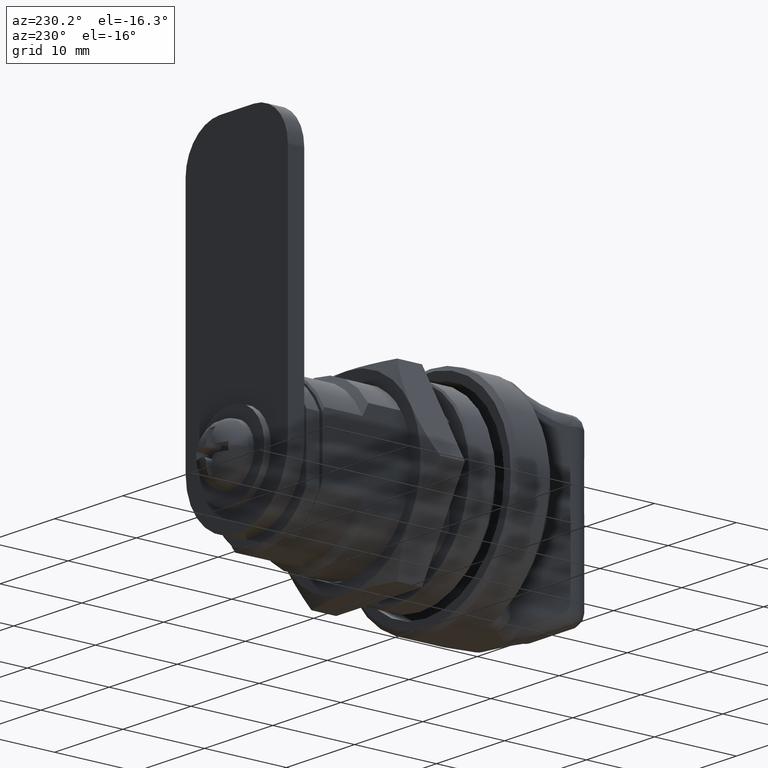
[diagram: clean part render]
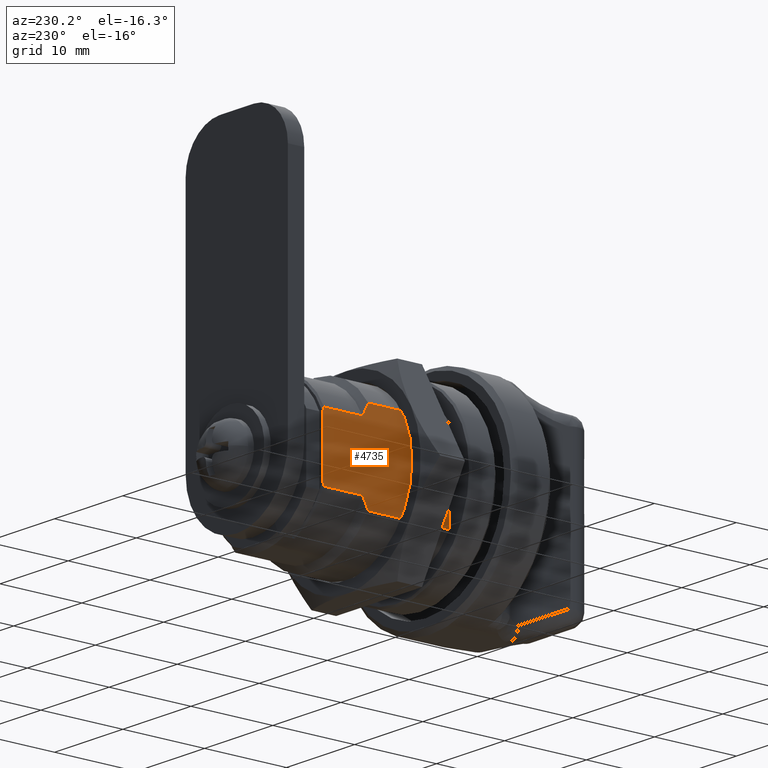
[diagram: same view with one face highlighted and labeled with its STEP entity id]
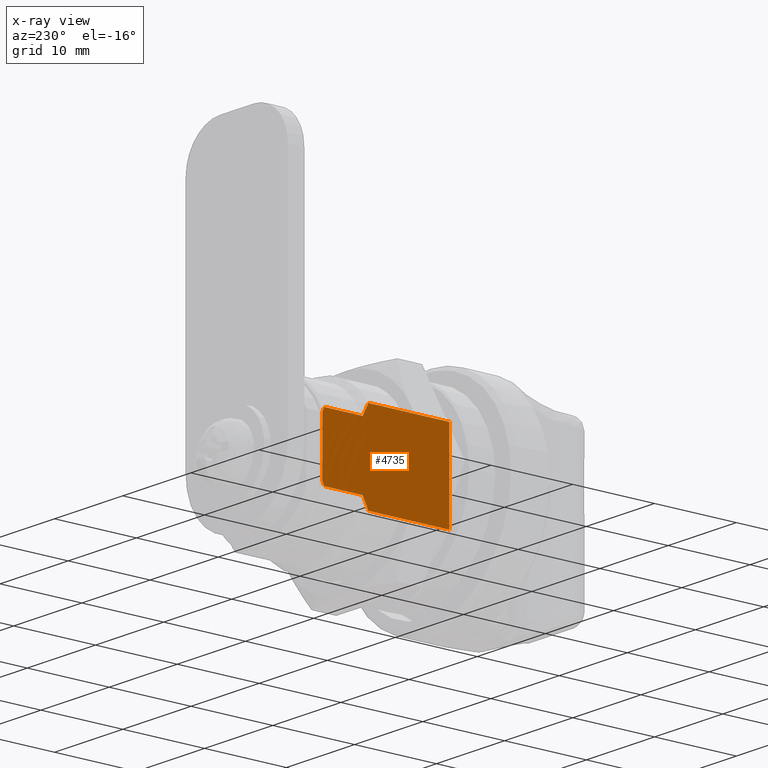
[diagram: x-ray of the same camera — body ghosted, the highlighted face saturated]
A machine part, auxiliary view. The second image highlights one B-rep face of the part: STEP entity #4735.
The next image is the same camera in x-ray: the body ghosted, the highlighted face saturated — about 0% of this face is hidden behind the body in this view.
In plain terms, the highlighted planar face has unit normal (-1, 0, 0).
Its self-contained STEP definition (entity closure, byte-faithful):
#70 = CARTESIAN_POINT ( 'NONE',  ( -1.550000000000000300, 7.900000000000000400, -6.331634859970000300 ) ) ;
#88 = B_SPLINE_CURVE_WITH_KNOTS ( 'NONE', 3,
 ( #5019, #10994, #767, #6726 ),
 .UNSPECIFIED., .F., .F.,
 ( 4, 4 ),
 ( 5.120373619252827600E-017, 0.001564807531085466500 ),
 .UNSPECIFIED. ) ;
#209 = CARTESIAN_POINT ( 'NONE',  ( 15.50000000000000000, 7.900000000000000400, -3.398529093590000500 ) ) ;
#265 = EDGE_CURVE ( 'NONE', #10093, #9465, #7537, .T. ) ;
#338 = ORIENTED_EDGE ( 'NONE', *, *, #265, .T. ) ;
#550 = ORIENTED_EDGE ( 'NONE', *, *, #9028, .T. ) ;
#767 = CARTESIAN_POINT ( 'NONE',  ( 10.38945910151208500, 7.900000000000000400, -4.354757281652907400 ) ) ;
#925 = DIRECTION ( 'NONE',  ( 0.0000000000000000000, -0.0000000000000000000, 1.000000000000000000 ) ) ;
#1232 = DIRECTION ( 'NONE',  ( 1.000000000000000000, 0.0000000000000000000, -0.0000000000000000000 ) ) ;
#1313 = CARTESIAN_POINT ( 'NONE',  ( -1.550000000000000300, 7.900000000000000400, -5.276362383310000400 ) ) ;
#1319 = AXIS2_PLACEMENT_3D ( 'NONE', #70, #6007, #925 ) ;
#1583 = CARTESIAN_POINT ( 'NONE',  ( 10.38945910151585600, 7.900000000000000400, 4.354757281654233500 ) ) ;
#1897 = CARTESIAN_POINT ( 'NONE',  ( 15.50000000000000000, 7.900000000000000400, -3.398529093590000500 ) ) ;
#1926 = B_SPLINE_CURVE_WITH_KNOTS ( 'NONE', 3,
 ( #7526, #1583, #10972, #5844 ),
 .UNSPECIFIED., .F., .F.,
 ( 4, 4 ),
 ( 5.480973023559017000E-016, 0.001564807531085047100 ),
 .UNSPECIFIED. ) ;
#1929 = DIRECTION ( 'NONE',  ( 1.000000000000000000, 0.0000000000000000000, -0.0000000000000000000 ) ) ;
#2175 = LINE ( 'NONE', #1313, #4417 ) ;
#2368 = VERTEX_POINT ( 'NONE', #5313 ) ;
#2718 = CARTESIAN_POINT ( 'NONE',  ( -1.550000000000000300, 7.900000000000000400, -3.876854395000000100 ) ) ;
#3285 = VECTOR ( 'NONE', #6745, 1000.000000000000000 ) ;
#3467 = LINE ( 'NONE', #8010, #5449 ) ;
#3549 = CARTESIAN_POINT ( 'NONE',  ( 10.59999999998618700, 7.900000000000000400, -3.876854394993817900 ) ) ;
#3622 = EDGE_LOOP ( 'NONE', ( #5118, #550, #4379, #5263, #4487, #8083, #8730, #7164, #4875, #338 ) ) ;
#3723 = EDGE_CURVE ( 'NONE', #6673, #7141, #6496, .T. ) ;
#3905 = CARTESIAN_POINT ( 'NONE',  ( 9.900000000003236900, 7.900000000000000400, 5.276362383311766100 ) ) ;
#4379 = ORIENTED_EDGE ( 'NONE', *, *, #3723, .F. ) ;
#4393 = CARTESIAN_POINT ( 'NONE',  ( -2.841390317476010800E-014, 7.900000000000000400, -5.276362383309583800 ) ) ;
#4417 = VECTOR ( 'NONE', #6391, 1000.000000000000000 ) ;
#4487 = ORIENTED_EDGE ( 'NONE', *, *, #5439, .F. ) ;
#4548 = CARTESIAN_POINT ( 'NONE',  ( 15.50000000000000000, 7.900000000000000400, 3.398529093589997000 ) ) ;
#4569 = EDGE_CURVE ( 'NONE', #2368, #9465, #88, .T. ) ;
#4572 = CARTESIAN_POINT ( 'NONE',  ( -2.841390317476010800E-014, 7.900000000000000400, 5.276362383309584700 ) ) ;
#4600 = DIRECTION ( 'NONE',  ( -0.0000000000000000000, 0.0000000000000000000, -1.000000000000000000 ) ) ;
#4643 = CARTESIAN_POINT ( 'NONE',  ( -1.550000000000000300, 7.900000000000000400, 3.876854395000000500 ) ) ;
#4735 = ADVANCED_FACE ( 'NONE', ( #5413 ), #10241, .T. ) ;
#4839 = VERTEX_POINT ( 'NONE', #209 ) ;
#4875 = ORIENTED_EDGE ( 'NONE', *, *, #8677, .F. ) ;
#5019 = CARTESIAN_POINT ( 'NONE',  ( 9.900000000001631100, 7.900000000000000400, -5.276362383310874400 ) ) ;
#5050 = CARTESIAN_POINT ( 'NONE',  ( 10.59999999998808600, 7.900000000000000400, 3.876854394994655000 ) ) ;
#5118 = ORIENTED_EDGE ( 'NONE', *, *, #4569, .F. ) ;
#5186 = VERTEX_POINT ( 'NONE', #3905 ) ;
#5188 = VECTOR ( 'NONE', #1232, 1000.000000000000000 ) ;
#5263 = ORIENTED_EDGE ( 'NONE', *, *, #8732, .T. ) ;
#5313 = CARTESIAN_POINT ( 'NONE',  ( 9.900000000001631100, 7.900000000000000400, -5.276362383310874400 ) ) ;
#5413 = FACE_OUTER_BOUND ( 'NONE', #3622, .T. ) ;
#5439 = EDGE_CURVE ( 'NONE', #8463, #5186, #1926, .T. ) ;
#5449 = VECTOR ( 'NONE', #4600, 1000.000000000000000 ) ;
#5553 = DIRECTION ( 'NONE',  ( 0.0000000000000000000, 0.0000000000000000000, -1.000000000000000000 ) ) ;
#5844 = CARTESIAN_POINT ( 'NONE',  ( 9.900000000003236900, 7.900000000000000400, 5.276362383311766100 ) ) ;
#6007 = DIRECTION ( 'NONE',  ( 0.0000000000000000000, 1.000000000000000000, 0.0000000000000000000 ) ) ;
#6068 = CARTESIAN_POINT ( 'NONE',  ( 15.30000000000120300, 7.900000000001077700, -3.876854395000529400 ) ) ;
#6391 = DIRECTION ( 'NONE',  ( -1.000000000000000000, -0.0000000000000000000, 0.0000000000000000000 ) ) ;
#6496 = LINE ( 'NONE', #10678, #10791 ) ;
#6673 = VERTEX_POINT ( 'NONE', #4572 ) ;
#6726 = CARTESIAN_POINT ( 'NONE',  ( 10.59999999998618700, 7.900000000000000400, -3.876854394993817900 ) ) ;
#6745 = DIRECTION ( 'NONE',  ( -1.000000000000000000, -0.0000000000000000000, 0.0000000000000000000 ) ) ;
#6986 = CARTESIAN_POINT ( 'NONE',  ( 15.43735889395696500, 7.900000000019993300, -3.557042820263449600 ) ) ;
#7022 = CARTESIAN_POINT ( 'NONE',  ( -1.550000000000000300, 7.900000000000000400, 5.276362383310001300 ) ) ;
#7141 = VERTEX_POINT ( 'NONE', #4393 ) ;
#7164 = ORIENTED_EDGE ( 'NONE', *, *, #9628, .T. ) ;
#7526 = CARTESIAN_POINT ( 'NONE',  ( 10.59999999998808600, 7.900000000000000400, 3.876854394994655000 ) ) ;
#7537 = LINE ( 'NONE', #2718, #3285 ) ;
#7554 = EDGE_CURVE ( 'NONE', #8255, #10003, #10570, .T. ) ;
#7599 = CARTESIAN_POINT ( 'NONE',  ( 15.50000000000000000, 7.900000000000000400, 3.398529093589997000 ) ) ;
#7736 = LINE ( 'NONE', #4643, #5188 ) ;
#8010 = CARTESIAN_POINT ( 'NONE',  ( 15.50000000000000000, 7.900000000000000400, -6.331634859970000300 ) ) ;
#8083 = ORIENTED_EDGE ( 'NONE', *, *, #9688, .T. ) ;
#8255 = VERTEX_POINT ( 'NONE', #7599 ) ;
#8299 = VECTOR ( 'NONE', #1929, 1000.000000000000000 ) ;
#8463 = VERTEX_POINT ( 'NONE', #5050 ) ;
#8677 = EDGE_CURVE ( 'NONE', #10093, #4839, #10423, .T. ) ;
#8730 = ORIENTED_EDGE ( 'NONE', *, *, #7554, .F. ) ;
#8732 = EDGE_CURVE ( 'NONE', #6673, #5186, #10853, .T. ) ;
#8797 = CARTESIAN_POINT ( 'NONE',  ( 15.37069222713109800, 7.899999999994079800, 3.716391417711064200 ) ) ;
#9028 = EDGE_CURVE ( 'NONE', #2368, #7141, #2175, .T. ) ;
#9332 = CARTESIAN_POINT ( 'NONE',  ( 15.29999999999908100, 7.899999999999175200, 3.876854394999595100 ) ) ;
#9465 = VERTEX_POINT ( 'NONE', #3549 ) ;
#9628 = EDGE_CURVE ( 'NONE', #8255, #4839, #3467, .T. ) ;
#9676 = CARTESIAN_POINT ( 'NONE',  ( 15.43735889379838100, 7.900000000018635200, 3.557042820661242100 ) ) ;
#9688 = EDGE_CURVE ( 'NONE', #8463, #10003, #7736, .T. ) ;
#10003 = VERTEX_POINT ( 'NONE', #9332 ) ;
#10093 = VERTEX_POINT ( 'NONE', #10492 ) ;
#10241 = PLANE ( 'NONE',  #1319 ) ;
#10373 = CARTESIAN_POINT ( 'NONE',  ( 15.37069222729110200, 7.900000000020349400, -3.716391417306756900 ) ) ;
#10423 = B_SPLINE_CURVE_WITH_KNOTS ( 'NONE', 3,
 ( #6068, #10373, #6986, #1897 ),
 .UNSPECIFIED., .F., .F.,
 ( 4, 4 ),
 ( 0.0000000000000000000, 1.000000000000000000 ),
 .UNSPECIFIED. ) ;
#10492 = CARTESIAN_POINT ( 'NONE',  ( 15.30000000000120300, 7.900000000001077700, -3.876854395000529400 ) ) ;
#10537 = CARTESIAN_POINT ( 'NONE',  ( 15.29999999999908100, 7.899999999999175200, 3.876854394999595100 ) ) ;
#10570 = B_SPLINE_CURVE_WITH_KNOTS ( 'NONE', 3,
 ( #4548, #9676, #8797, #10537 ),
 .UNSPECIFIED., .F., .F.,
 ( 4, 4 ),
 ( 0.0000000000000000000, 1.000000000000000000 ),
 .UNSPECIFIED. ) ;
#10678 = CARTESIAN_POINT ( 'NONE',  ( -5.684341886080000600E-014, 7.900000000000000400, 14.03999999999999900 ) ) ;
#10791 = VECTOR ( 'NONE', #5553, 1000.000000000000000 ) ;
#10853 = LINE ( 'NONE', #7022, #8299 ) ;
#10972 = CARTESIAN_POINT ( 'NONE',  ( 10.15349712306947100, 7.900000000000000400, 4.819945159804114500 ) ) ;
#10994 = CARTESIAN_POINT ( 'NONE',  ( 10.15349712306627900, 7.900000000000000400, -4.819945159801990000 ) ) ;